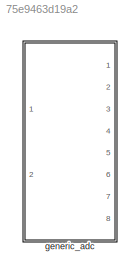
MODEL slx_75e9463d19a2
KIND model
CONFIG AbsTol = auto
CONFIG EnableMultiTasking = off
CONFIG FixedStep = auto
CONFIG MaxStep = auto
CONFIG MinStep = auto
CONFIG RelTol = 1e-3
CONFIG SampleTimeConstraint = Unconstrained
CONFIG Solver = VariableStepAuto
CONFIG SolverName = VariableStepAuto
CONFIG StartTime = 0.0
CONFIG StopTime = 10.0
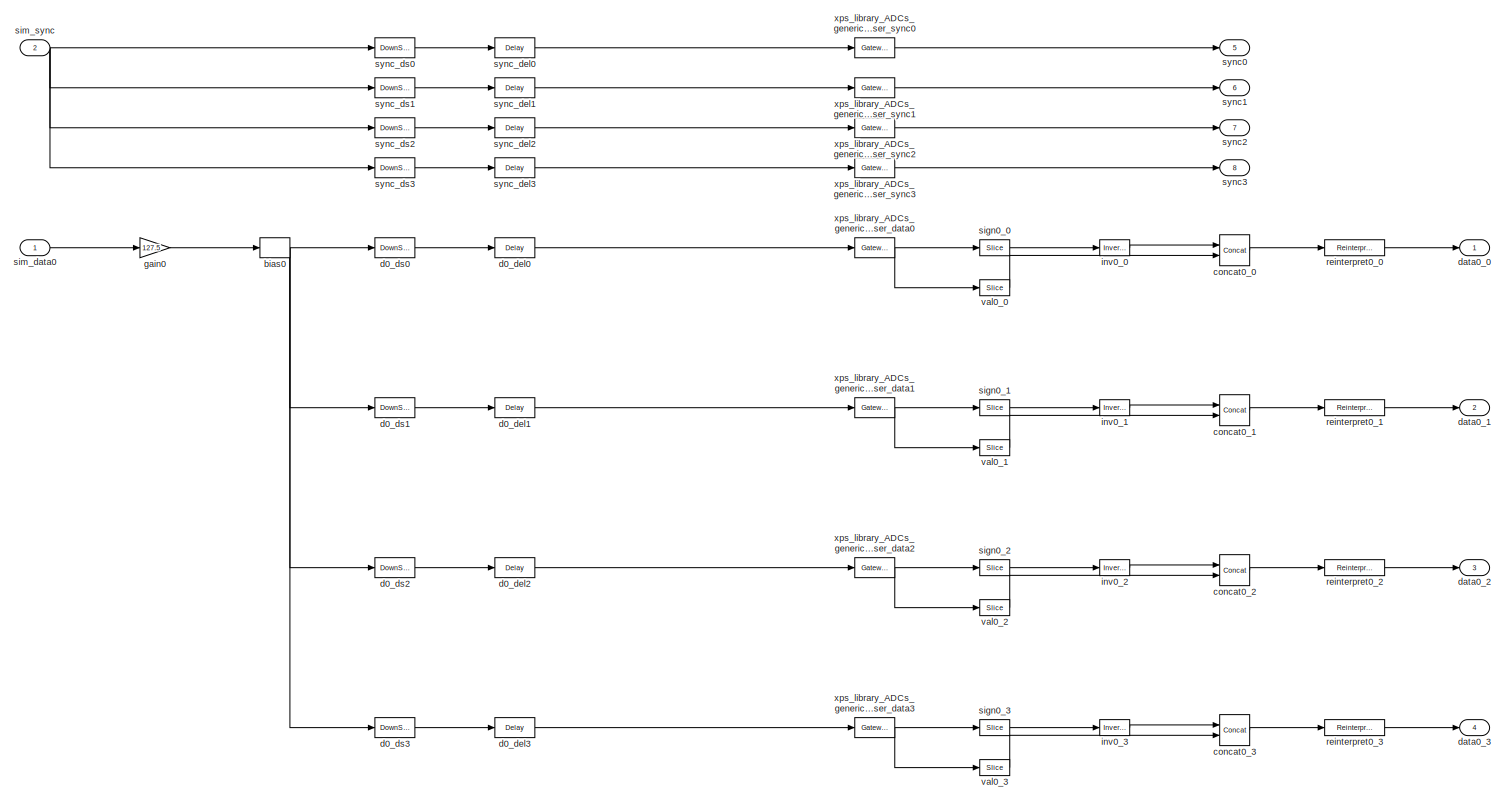
[diagram: generic_adc - part 1/1, most of the canvas]
BLOCK [SubSystem] generic_adc
  Ports = [2, 8]
  RequestExecContextInheritance = off
  UserDataPersistent = on
  Variant = off
BLOCK [Bias] generic_adc/bias0
  Bias = 127.5
BLOCK [Reference] generic_adc/concat0_0  REF=xbsIndex_r4/Concat
  Ports = [2, 1]
  SourceBlock = xbsIndex_r4/Concat
  SourceType = Xilinx Bus Concatenator Block
BLOCK [Reference] generic_adc/concat0_1  REF=xbsIndex_r4/Concat
  Ports = [2, 1]
  SourceBlock = xbsIndex_r4/Concat
  SourceType = Xilinx Bus Concatenator Block
BLOCK [Reference] generic_adc/concat0_2  REF=xbsIndex_r4/Concat
  Ports = [2, 1]
  SourceBlock = xbsIndex_r4/Concat
  SourceType = Xilinx Bus Concatenator Block
BLOCK [Reference] generic_adc/concat0_3  REF=xbsIndex_r4/Concat
  Ports = [2, 1]
  SourceBlock = xbsIndex_r4/Concat
  SourceType = Xilinx Bus Concatenator Block
BLOCK [Delay] generic_adc/d0_del0
  InputPortMap = u0
  InputProcessing = Inherited
  Ports = [1, 1]
BLOCK [Delay] generic_adc/d0_del1
  DelayLength = 1
  InputPortMap = u0
  InputProcessing = Inherited
  Ports = [1, 1]
BLOCK [Delay] generic_adc/d0_del2
  DelayLength = 1
  InputPortMap = u0
  InputProcessing = Inherited
  Ports = [1, 1]
BLOCK [Delay] generic_adc/d0_del3
  DelayLength = 1
  InputPortMap = u0
  InputProcessing = Inherited
  Ports = [1, 1]
BLOCK [DownSample] generic_adc/d0_ds0
  InputProcessing = Elements as channels (sample based)
  N = 4
  RateOptions = Allow multirate processing
BLOCK [DownSample] generic_adc/d0_ds1
  InputProcessing = Elements as channels (sample based)
  N = 4
  RateOptions = Allow multirate processing
  phase = 1
BLOCK [DownSample] generic_adc/d0_ds2
  InputProcessing = Elements as channels (sample based)
  N = 4
  RateOptions = Allow multirate processing
  phase = 2
BLOCK [DownSample] generic_adc/d0_ds3
  InputProcessing = Elements as channels (sample based)
  N = 4
  RateOptions = Allow multirate processing
  phase = 3
BLOCK [Outport] generic_adc/data0_0
  IconDisplay = Port number
BLOCK [Outport] generic_adc/data0_1
  IconDisplay = Port number
  Port = 2
BLOCK [Outport] generic_adc/data0_2
  IconDisplay = Port number
  Port = 3
BLOCK [Outport] generic_adc/data0_3
  IconDisplay = Port number
  Port = 4
BLOCK [Gain] generic_adc/gain0
  Gain = 127.5
BLOCK [Reference] generic_adc/inv0_0  REF=xbsIndex_r4/Inverter
  Ports = [1, 1]
  SourceBlock = xbsIndex_r4/Inverter
  SourceType = Xilinx Inverter Block
BLOCK [Reference] generic_adc/inv0_1  REF=xbsIndex_r4/Inverter
  Ports = [1, 1]
  SourceBlock = xbsIndex_r4/Inverter
  SourceType = Xilinx Inverter Block
BLOCK [Reference] generic_adc/inv0_2  REF=xbsIndex_r4/Inverter
  Ports = [1, 1]
  SourceBlock = xbsIndex_r4/Inverter
  SourceType = Xilinx Inverter Block
BLOCK [Reference] generic_adc/inv0_3  REF=xbsIndex_r4/Inverter
  Ports = [1, 1]
  SourceBlock = xbsIndex_r4/Inverter
  SourceType = Xilinx Inverter Block
BLOCK [Reference] generic_adc/reinterpret0_0  REF=xbsIndex_r4/Reinterpret
  Ports = [1, 1]
  SourceBlock = xbsIndex_r4/Reinterpret
  SourceType = Xilinx Type Reinterpreter Block
BLOCK [Reference] generic_adc/reinterpret0_1  REF=xbsIndex_r4/Reinterpret
  Ports = [1, 1]
  SourceBlock = xbsIndex_r4/Reinterpret
  SourceType = Xilinx Type Reinterpreter Block
BLOCK [Reference] generic_adc/reinterpret0_2  REF=xbsIndex_r4/Reinterpret
  Ports = [1, 1]
  SourceBlock = xbsIndex_r4/Reinterpret
  SourceType = Xilinx Type Reinterpreter Block
BLOCK [Reference] generic_adc/reinterpret0_3  REF=xbsIndex_r4/Reinterpret
  Ports = [1, 1]
  SourceBlock = xbsIndex_r4/Reinterpret
  SourceType = Xilinx Type Reinterpreter Block
BLOCK [Reference] generic_adc/sign0_0  REF=xbsIndex_r4/Slice
  Ports = [1, 1]
  SourceBlock = xbsIndex_r4/Slice
  SourceType = Xilinx Bit Slice Extractor Block
BLOCK [Reference] generic_adc/sign0_1  REF=xbsIndex_r4/Slice
  Ports = [1, 1]
  SourceBlock = xbsIndex_r4/Slice
  SourceType = Xilinx Bit Slice Extractor Block
BLOCK [Reference] generic_adc/sign0_2  REF=xbsIndex_r4/Slice
  Ports = [1, 1]
  SourceBlock = xbsIndex_r4/Slice
  SourceType = Xilinx Bit Slice Extractor Block
BLOCK [Reference] generic_adc/sign0_3  REF=xbsIndex_r4/Slice
  Ports = [1, 1]
  SourceBlock = xbsIndex_r4/Slice
  SourceType = Xilinx Bit Slice Extractor Block
BLOCK [Inport] generic_adc/sim_data0
  IconDisplay = Port number
BLOCK [Inport] generic_adc/sim_sync
  IconDisplay = Port number
  Port = 2
BLOCK [Outport] generic_adc/sync0
  IconDisplay = Port number
  Port = 5
BLOCK [Outport] generic_adc/sync1
  IconDisplay = Port number
  Port = 6
BLOCK [Outport] generic_adc/sync2
  IconDisplay = Port number
  Port = 7
BLOCK [Outport] generic_adc/sync3
  IconDisplay = Port number
  Port = 8
BLOCK [Delay] generic_adc/sync_del0
  InputPortMap = u0
  InputProcessing = Inherited
  Ports = [1, 1]
BLOCK [Delay] generic_adc/sync_del1
  DelayLength = 1
  InputPortMap = u0
  InputProcessing = Inherited
  Ports = [1, 1]
BLOCK [Delay] generic_adc/sync_del2
  DelayLength = 1
  InputPortMap = u0
  InputProcessing = Inherited
  Ports = [1, 1]
BLOCK [Delay] generic_adc/sync_del3
  DelayLength = 1
  InputPortMap = u0
  InputProcessing = Inherited
  Ports = [1, 1]
BLOCK [DownSample] generic_adc/sync_ds0
  InputProcessing = Elements as channels (sample based)
  N = 4
  RateOptions = Allow multirate processing
BLOCK [DownSample] generic_adc/sync_ds1
  InputProcessing = Elements as channels (sample based)
  N = 4
  RateOptions = Allow multirate processing
  phase = 1
BLOCK [DownSample] generic_adc/sync_ds2
  InputProcessing = Elements as channels (sample based)
  N = 4
  RateOptions = Allow multirate processing
  phase = 2
BLOCK [DownSample] generic_adc/sync_ds3
  InputProcessing = Elements as channels (sample based)
  N = 4
  RateOptions = Allow multirate processing
  phase = 3
BLOCK [Reference] generic_adc/val0_0  REF=xbsIndex_r4/Slice
  Ports = [1, 1]
  SourceBlock = xbsIndex_r4/Slice
  SourceType = Xilinx Bit Slice Extractor Block
BLOCK [Reference] generic_adc/val0_1  REF=xbsIndex_r4/Slice
  Ports = [1, 1]
  SourceBlock = xbsIndex_r4/Slice
  SourceType = Xilinx Bit Slice Extractor Block
BLOCK [Reference] generic_adc/val0_2  REF=xbsIndex_r4/Slice
  Ports = [1, 1]
  SourceBlock = xbsIndex_r4/Slice
  SourceType = Xilinx Bit Slice Extractor Block
BLOCK [Reference] generic_adc/val0_3  REF=xbsIndex_r4/Slice
  Ports = [1, 1]
  SourceBlock = xbsIndex_r4/Slice
  SourceType = Xilinx Bit Slice Extractor Block
BLOCK [Reference] generic_adc/xps_library_ADCs_generic_adc_user_data0  REF=xbsIndex_r4/Gateway In
  Ports = [1, 1]
  SourceBlock = xbsIndex_r4/Gateway In
  SourceType = Xilinx Gateway In Block
BLOCK [Reference] generic_adc/xps_library_ADCs_generic_adc_user_data1  REF=xbsIndex_r4/Gateway In
  Ports = [1, 1]
  SourceBlock = xbsIndex_r4/Gateway In
  SourceType = Xilinx Gateway In Block
BLOCK [Reference] generic_adc/xps_library_ADCs_generic_adc_user_data2  REF=xbsIndex_r4/Gateway In
  Ports = [1, 1]
  SourceBlock = xbsIndex_r4/Gateway In
  SourceType = Xilinx Gateway In Block
BLOCK [Reference] generic_adc/xps_library_ADCs_generic_adc_user_data3  REF=xbsIndex_r4/Gateway In
  Ports = [1, 1]
  SourceBlock = xbsIndex_r4/Gateway In
  SourceType = Xilinx Gateway In Block
BLOCK [Reference] generic_adc/xps_library_ADCs_generic_adc_user_sync0  REF=xbsIndex_r4/Gateway In
  Ports = [1, 1]
  SourceBlock = xbsIndex_r4/Gateway In
  SourceType = Xilinx Gateway In Block
BLOCK [Reference] generic_adc/xps_library_ADCs_generic_adc_user_sync1  REF=xbsIndex_r4/Gateway In
  Ports = [1, 1]
  SourceBlock = xbsIndex_r4/Gateway In
  SourceType = Xilinx Gateway In Block
BLOCK [Reference] generic_adc/xps_library_ADCs_generic_adc_user_sync2  REF=xbsIndex_r4/Gateway In
  Ports = [1, 1]
  SourceBlock = xbsIndex_r4/Gateway In
  SourceType = Xilinx Gateway In Block
BLOCK [Reference] generic_adc/xps_library_ADCs_generic_adc_user_sync3  REF=xbsIndex_r4/Gateway In
  Ports = [1, 1]
  SourceBlock = xbsIndex_r4/Gateway In
  SourceType = Xilinx Gateway In Block
NET generic_adc/bias0:1 -> generic_adc/d0_ds0:1, generic_adc/d0_ds1:1, generic_adc/d0_ds2:1, generic_adc/d0_ds3:1
LINE generic_adc/concat0_0:1 -> generic_adc/reinterpret0_0:1
LINE generic_adc/concat0_1:1 -> generic_adc/reinterpret0_1:1
LINE generic_adc/concat0_2:1 -> generic_adc/reinterpret0_2:1
LINE generic_adc/concat0_3:1 -> generic_adc/reinterpret0_3:1
LINE generic_adc/d0_del0:1 -> generic_adc/xps_library_ADCs_generic_adc_user_data0:1
LINE generic_adc/d0_del1:1 -> generic_adc/xps_library_ADCs_generic_adc_user_data1:1
LINE generic_adc/d0_del2:1 -> generic_adc/xps_library_ADCs_generic_adc_user_data2:1
LINE generic_adc/d0_del3:1 -> generic_adc/xps_library_ADCs_generic_adc_user_data3:1
LINE generic_adc/d0_ds0:1 -> generic_adc/d0_del0:1
LINE generic_adc/d0_ds1:1 -> generic_adc/d0_del1:1
LINE generic_adc/d0_ds2:1 -> generic_adc/d0_del2:1
LINE generic_adc/d0_ds3:1 -> generic_adc/d0_del3:1
LINE generic_adc/gain0:1 -> generic_adc/bias0:1
LINE generic_adc/inv0_0:1 -> generic_adc/concat0_0:1
LINE generic_adc/inv0_1:1 -> generic_adc/concat0_1:1
LINE generic_adc/inv0_2:1 -> generic_adc/concat0_2:1
LINE generic_adc/inv0_3:1 -> generic_adc/concat0_3:1
LINE generic_adc/reinterpret0_0:1 -> generic_adc/data0_0:1
LINE generic_adc/reinterpret0_1:1 -> generic_adc/data0_1:1
LINE generic_adc/reinterpret0_2:1 -> generic_adc/data0_2:1
LINE generic_adc/reinterpret0_3:1 -> generic_adc/data0_3:1
LINE generic_adc/sign0_0:1 -> generic_adc/inv0_0:1
LINE generic_adc/sign0_1:1 -> generic_adc/inv0_1:1
LINE generic_adc/sign0_2:1 -> generic_adc/inv0_2:1
LINE generic_adc/sign0_3:1 -> generic_adc/inv0_3:1
LINE generic_adc/sim_data0:1 -> generic_adc/gain0:1
NET generic_adc/sim_sync:1 -> generic_adc/sync_ds0:1, generic_adc/sync_ds1:1, generic_adc/sync_ds2:1, generic_adc/sync_ds3:1
LINE generic_adc/sync_del0:1 -> generic_adc/xps_library_ADCs_generic_adc_user_sync0:1
LINE generic_adc/sync_del1:1 -> generic_adc/xps_library_ADCs_generic_adc_user_sync1:1
LINE generic_adc/sync_del2:1 -> generic_adc/xps_library_ADCs_generic_adc_user_sync2:1
LINE generic_adc/sync_del3:1 -> generic_adc/xps_library_ADCs_generic_adc_user_sync3:1
LINE generic_adc/sync_ds0:1 -> generic_adc/sync_del0:1
LINE generic_adc/sync_ds1:1 -> generic_adc/sync_del1:1
LINE generic_adc/sync_ds2:1 -> generic_adc/sync_del2:1
LINE generic_adc/sync_ds3:1 -> generic_adc/sync_del3:1
LINE generic_adc/val0_0:1 -> generic_adc/concat0_0:2
LINE generic_adc/val0_1:1 -> generic_adc/concat0_1:2
LINE generic_adc/val0_2:1 -> generic_adc/concat0_2:2
LINE generic_adc/val0_3:1 -> generic_adc/concat0_3:2
NET generic_adc/xps_library_ADCs_generic_adc_user_data0:1 -> generic_adc/sign0_0:1, generic_adc/val0_0:1
NET generic_adc/xps_library_ADCs_generic_adc_user_data1:1 -> generic_adc/sign0_1:1, generic_adc/val0_1:1
NET generic_adc/xps_library_ADCs_generic_adc_user_data2:1 -> generic_adc/sign0_2:1, generic_adc/val0_2:1
NET generic_adc/xps_library_ADCs_generic_adc_user_data3:1 -> generic_adc/sign0_3:1, generic_adc/val0_3:1
LINE generic_adc/xps_library_ADCs_generic_adc_user_sync0:1 -> generic_adc/sync0:1
LINE generic_adc/xps_library_ADCs_generic_adc_user_sync1:1 -> generic_adc/sync1:1
LINE generic_adc/xps_library_ADCs_generic_adc_user_sync2:1 -> generic_adc/sync2:1
LINE generic_adc/xps_library_ADCs_generic_adc_user_sync3:1 -> generic_adc/sync3:1
note: NET lines group one-source signal fan-out (src -> all destinations, sorted); 1:1 wires keep LINE
